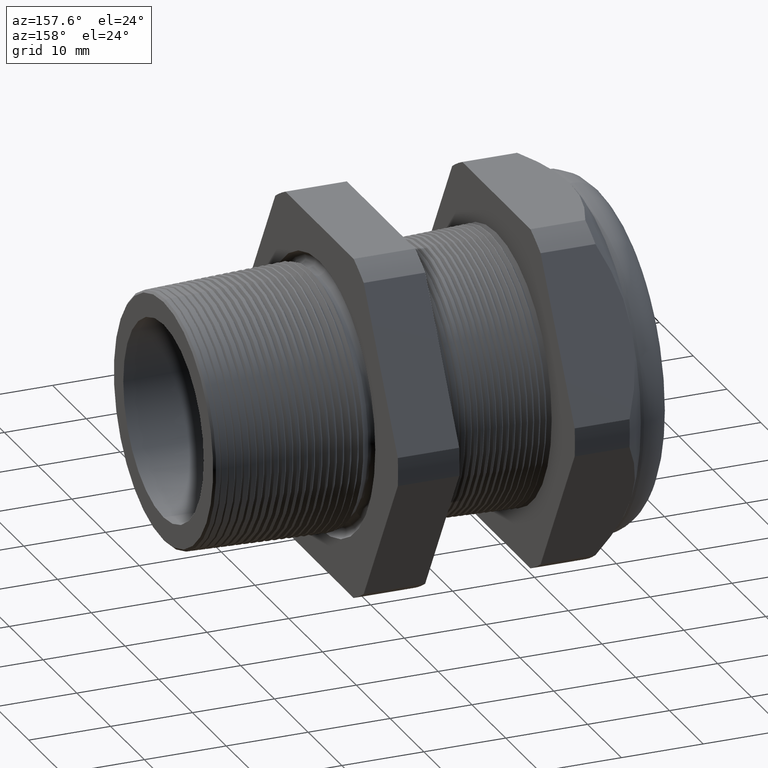
[diagram: clean part render]
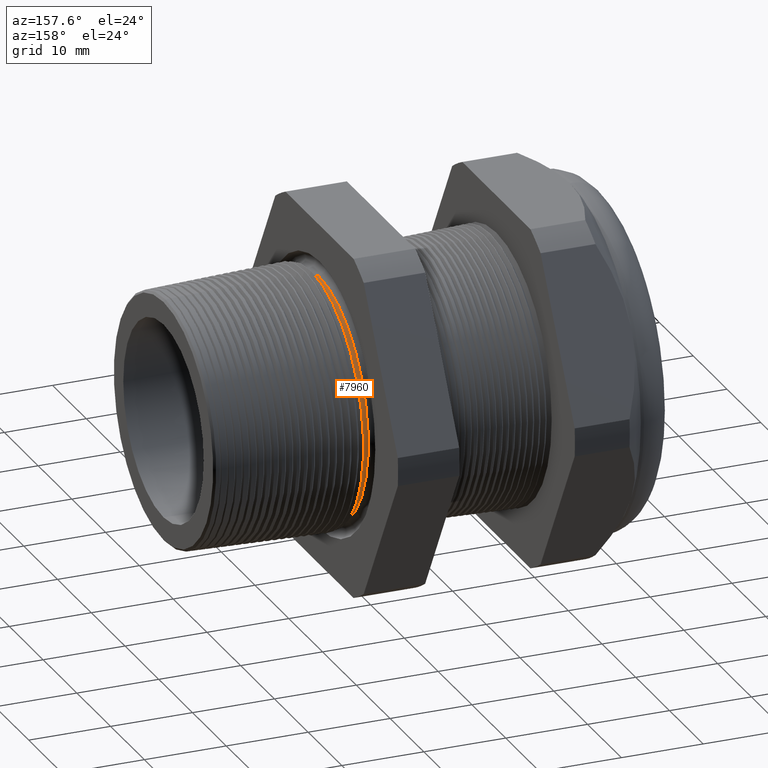
[diagram: same view with one face highlighted and labeled with its STEP entity id]
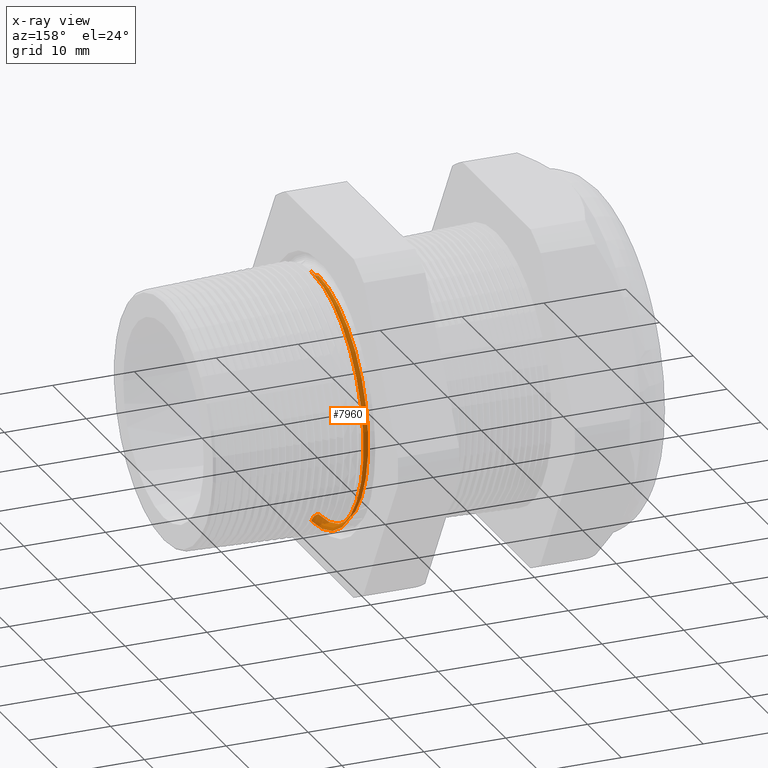
[diagram: x-ray of the same camera — body ghosted, the highlighted face saturated]
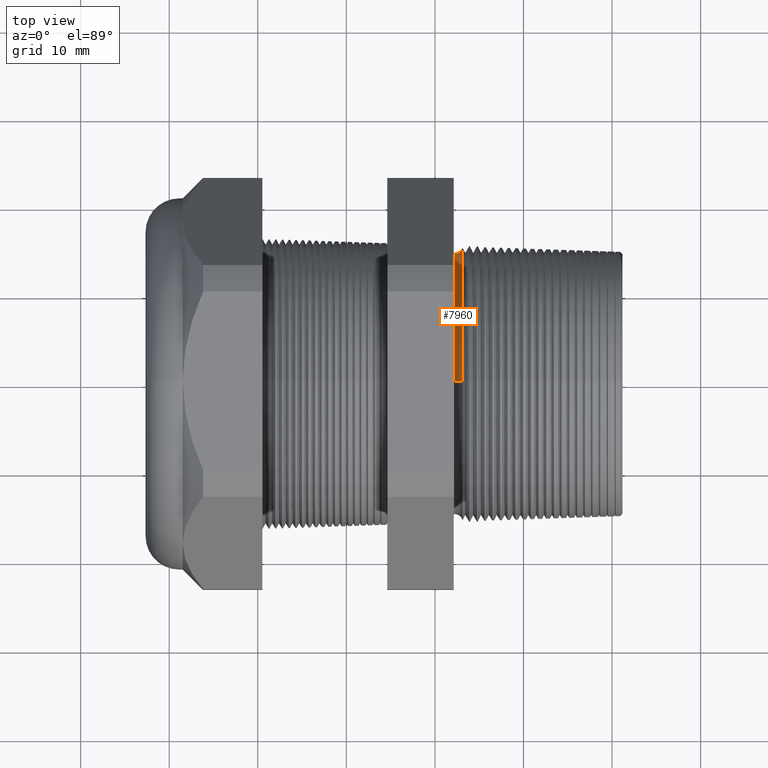
[diagram: same view with one face highlighted and labeled with its STEP entity id]
A machine part, auxiliary view. The second image highlights one B-rep face of the part: STEP entity #7960.
The next image is the same camera in x-ray: the body ghosted, the highlighted face saturated — about 8% of this face is hidden behind the body in this view.
A second angle (top view) of the same face is appended — the face is thin or edge-on in the first view.
In plain terms, the highlighted toroidal blend (fillet) surface has major radius 15.6288 mm and minor (blend) radius 0.889 mm.
Its self-contained STEP definition (entity closure, byte-faithful):
#3912 = DIRECTION ( 'NONE',  ( 0.0000000000000000000, 0.0000000000000000000, 1.000000000000000000 ) ) ;
#3913 = DIRECTION ( 'NONE',  ( 1.000000000000000000, 0.0000000000000000000, 0.0000000000000000000 ) ) ;
#3914 = CARTESIAN_POINT ( 'NONE',  ( -0.2708719432804224700, 0.0000000000000000000, 0.0000000000000000000 ) ) ;
#3915 = AXIS2_PLACEMENT_3D ( 'NONE', #3914, #3913, #3912 ) ;
#3917 = CIRCLE ( 'NONE', #3915, 0.6075426017415038700 ) ;
#3930 = DIRECTION ( 'NONE',  ( 0.0000000000000000000, 0.0000000000000000000, -1.000000000000000000 ) ) ;
#3931 = DIRECTION ( 'NONE',  ( 1.000000000000000000, 0.0000000000000000000, 0.0000000000000000000 ) ) ;
#3932 = CARTESIAN_POINT ( 'NONE',  ( -0.3049999999999999400, 0.0000000000000000000, 0.0000000000000000000 ) ) ;
#3933 = AXIS2_PLACEMENT_3D ( 'NONE', #3932, #3931, #3930 ) ;
#3934 = CIRCLE ( 'NONE', #3933, 0.5803063472644639500 ) ;
#3935 = CARTESIAN_POINT ( 'NONE',  ( -0.3049999999999999400, 7.106703107023183200E-017, 0.5803063472644639500 ) ) ;
#3948 = DIRECTION ( 'NONE',  ( 0.0000000000000000000, 1.224646799147352500E-016, 1.000000000000000000 ) ) ;
#3949 = DIRECTION ( 'NONE',  ( 0.0000000000000000000, 1.000000000000000000, -1.224646799147353200E-016 ) ) ;
#3950 = CARTESIAN_POINT ( 'NONE',  ( -0.3049999999999999400, 7.535329486724755800E-017, 0.6153063472644639800 ) ) ;
#3951 = AXIS2_PLACEMENT_3D ( 'NONE', #3950, #3949, #3948 ) ;
#3952 = CIRCLE ( 'NONE', #3951, 0.03500000000000003800 ) ;
#3955 = CARTESIAN_POINT ( 'NONE',  ( -0.3049999999999999400, 0.0000000000000000000, -0.5803063472644639500 ) ) ;
#4004 = DIRECTION ( 'NONE',  ( 0.0000000000000000000, 0.0000000000000000000, -1.000000000000000000 ) ) ;
#4005 = DIRECTION ( 'NONE',  ( 0.0000000000000000000, -1.000000000000000000, 0.0000000000000000000 ) ) ;
#4006 = CARTESIAN_POINT ( 'NONE',  ( -0.3049999999999999400, 0.0000000000000000000, -0.6153063472644639800 ) ) ;
#4007 = AXIS2_PLACEMENT_3D ( 'NONE', #4006, #4005, #4004 ) ;
#4008 = CIRCLE ( 'NONE', #4007, 0.03500000000000003800 ) ;
#4143 = DIRECTION ( 'NONE',  ( 0.0000000000000000000, 0.0000000000000000000, -1.000000000000000000 ) ) ;
#4144 = DIRECTION ( 'NONE',  ( 1.000000000000000000, 0.0000000000000000000, 0.0000000000000000000 ) ) ;
#4145 = AXIS2_PLACEMENT_3D ( 'NONE', #4153, #4144, #4143 ) ;
#4146 = TOROIDAL_SURFACE ( 'NONE', #4145, 0.6153063472644639800, 0.03499999999999997600 ) ;
#4147 = FACE_OUTER_BOUND ( 'NONE', #7980, .T. ) ;
#4153 = CARTESIAN_POINT ( 'NONE',  ( -0.3049999999999999400, 0.0000000000000000000, 0.0000000000000000000 ) ) ;
#4179 = CARTESIAN_POINT ( 'NONE',  ( -0.2708719432804224700, 0.0000000000000000000, 0.6075426017415039800 ) ) ;
#4180 = CARTESIAN_POINT ( 'NONE',  ( -0.2708719432804224700, 7.440251025683881500E-017, -0.6075426017415039800 ) ) ;
#7823 = VERTEX_POINT ( 'NONE', #3935 ) ;
#7824 = EDGE_CURVE ( 'NONE', #7850, #7823, #3934, .T. ) ;
#7826 = ORIENTED_EDGE ( 'NONE', *, *, #7824, .T. ) ;
#7830 = ORIENTED_EDGE ( 'NONE', *, *, #7831, .F. ) ;
#7831 = EDGE_CURVE ( 'NONE', #7982, #7984, #3917, .T. ) ;
#7850 = VERTEX_POINT ( 'NONE', #3955 ) ;
#7852 = ORIENTED_EDGE ( 'NONE', *, *, #7854, .F. ) ;
#7854 = EDGE_CURVE ( 'NONE', #7984, #7823, #3952, .T. ) ;
#7861 = EDGE_CURVE ( 'NONE', #7982, #7850, #4008, .T. ) ;
#7960 = ADVANCED_FACE ( 'NONE', ( #4147 ), #4146, .F. ) ;
#7980 = EDGE_LOOP ( 'NONE', ( #7986, #7826, #7852, #7830 ) ) ;
#7982 = VERTEX_POINT ( 'NONE', #4180 ) ;
#7984 = VERTEX_POINT ( 'NONE', #4179 ) ;
#7986 = ORIENTED_EDGE ( 'NONE', *, *, #7861, .T. ) ;